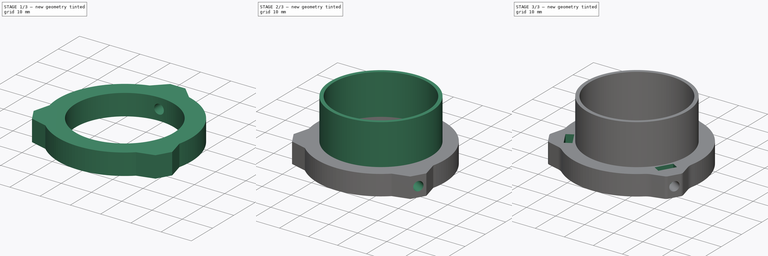
[diagram: build sequence overview — one tinted view per stage of 3, left to right]
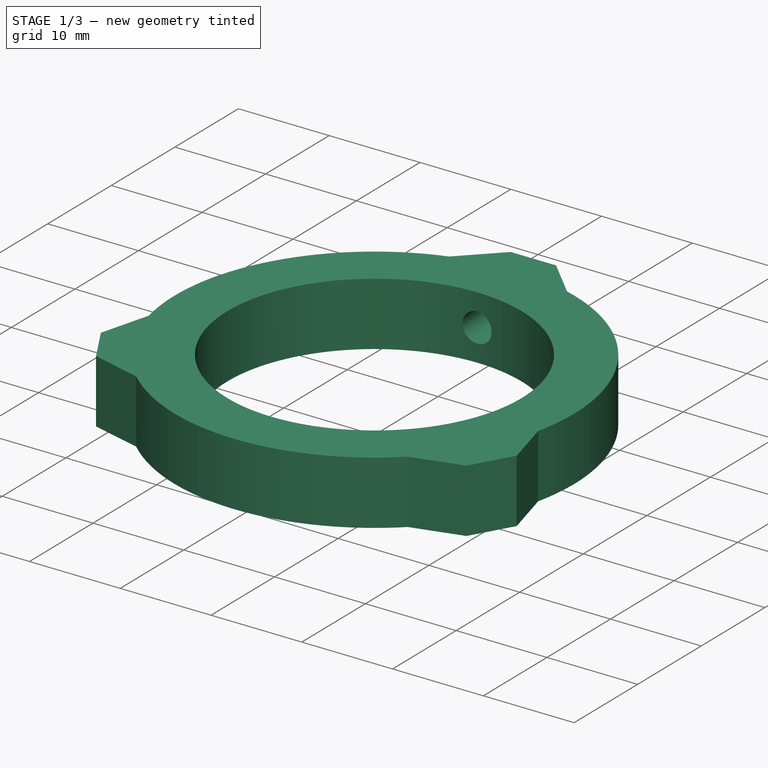
[diagram: stage 1 of 3 — iso view after this stage's code; geometry added in this stage tinted green]
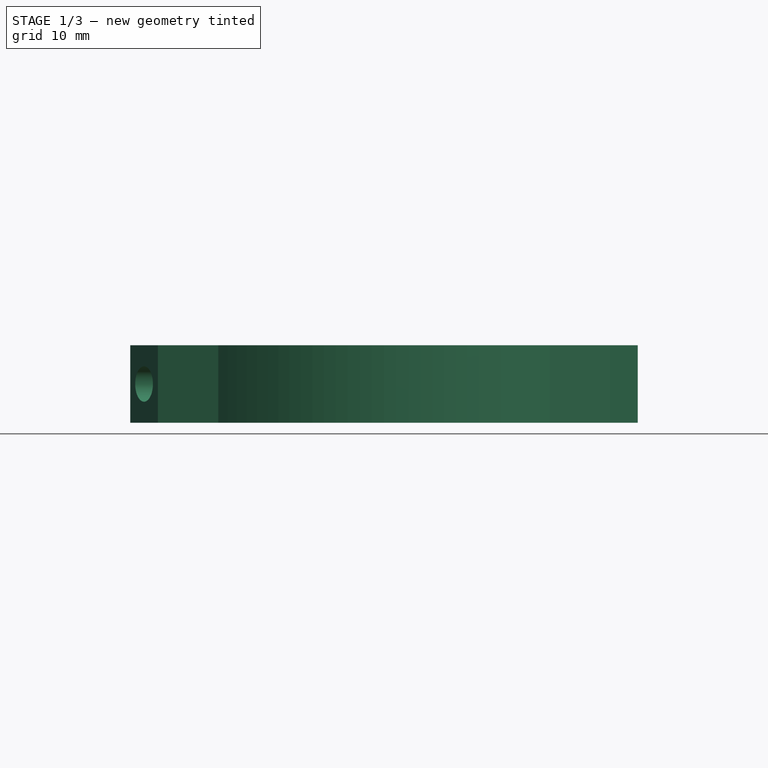
[diagram: stage 1 of 3 — front view after this stage's code; geometry added in this stage tinted green]
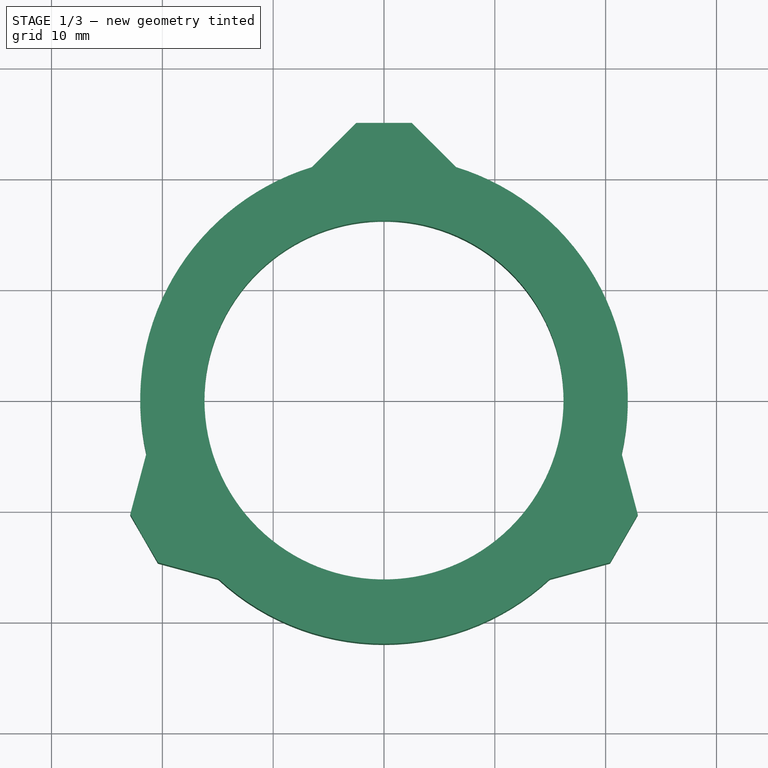
[diagram: stage 1 of 3 — top view after this stage's code; geometry added in this stage tinted green]
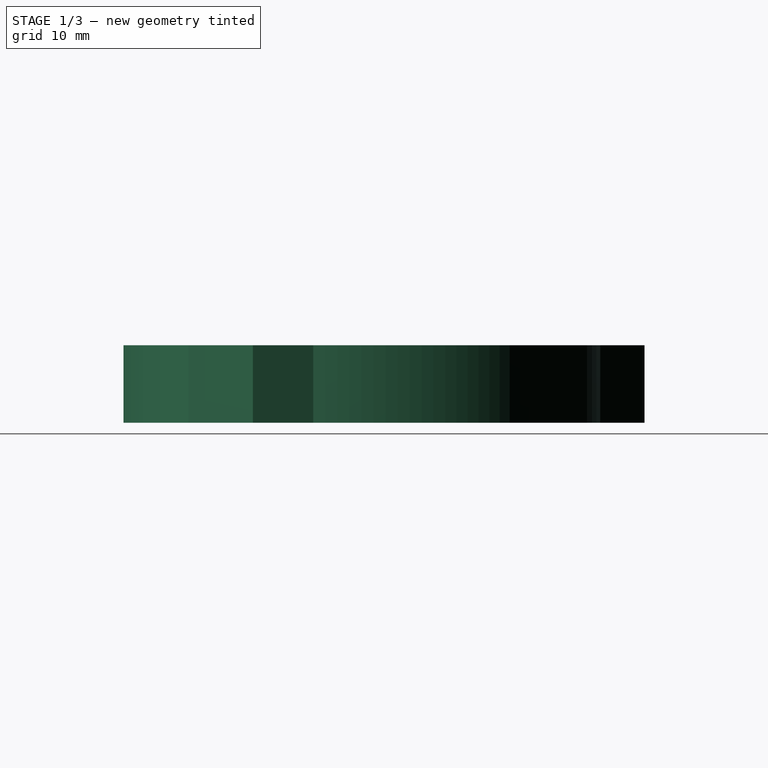
[diagram: stage 1 of 3 — right view after this stage's code; geometry added in this stage tinted green]
FCSTD DOCUMENT  (FreeCAD 0.16R4928 (Git))
Label: axis_spacer_collar
License: CC-BY 3.0
LicenseURL: http://creativecommons.org/licenses/by/3.0/
objects: Sketcher::SketchObject×6, PartDesign::Pocket×4, PartDesign::Pad×2, PartDesign::Fillet×2
note: 20 computed .brp shape members not serialized (recipe doc carries the construction recipe); baked Part::Feature solids carry a one-line shape summary decoded from their .brp

FEATURE [Sketcher::SketchObject] Sketch  label="baseSketch"
  sketch-geometry (15):
    g0: Circle CenterX=0 CenterY=0 CenterZ=0 NormalX=0 NormalY=0 NormalZ=1 Radius=16.2
    g1: ArcOfCircle CenterX=0 CenterY=0 CenterZ=0 NormalX=0 NormalY=0 NormalZ=1 Radius=22 StartAngle=1.87073 EndAngle=3.36526
    g2: LineSegment StartX=-2.5 StartY=25 StartZ=0 EndX=2.5 EndY=25 EndZ=0
    g3: LineSegment StartX=2.5 StartY=25 StartZ=0 EndX=6.5 EndY=21.0178 EndZ=0
    g4: LineSegment StartX=-6.5 StartY=21.0178 StartZ=0 EndX=-2.5 EndY=25 EndZ=0
    g5: LineSegment [constr] StartX=0 StartY=0 StartZ=0 EndX=21.6506 EndY=-12.5 EndZ=0
    g6: LineSegment [constr] StartX=0 StartY=0 StartZ=0 EndX=-21.6506 EndY=-12.5 EndZ=0
    g7: LineSegment StartX=-22.9006 StartY=-10.3349 StartZ=0 EndX=-20.4006 EndY=-14.6651 EndZ=0
    g8: LineSegment StartX=-20.4006 StartY=-14.6651 StartZ=0 EndX=-14.952 EndY=-16.1381 EndZ=0
    g9: LineSegment StartX=-22.9006 StartY=-10.3349 StartZ=0 EndX=-21.452 EndY=-4.87976 EndZ=0
    g10: ArcOfCircle CenterX=0 CenterY=0 CenterZ=0 NormalX=0 NormalY=0 NormalZ=1 Radius=22 StartAngle=3.96512 EndAngle=5.45966
    g11: LineSegment StartX=22.9006 StartY=-10.3349 StartZ=0 EndX=20.4006 EndY=-14.6651 EndZ=0
    g12: LineSegment StartX=22.9006 StartY=-10.3349 StartZ=0 EndX=21.452 EndY=-4.87976 EndZ=0
    g13: LineSegment StartX=20.4006 StartY=-14.6651 StartZ=0 EndX=14.952 EndY=-16.1381 EndZ=0
    g14: ArcOfCircle CenterX=0 CenterY=0 CenterZ=0 NormalX=0 NormalY=0 NormalZ=1 Radius=22 StartAngle=6.05952 EndAngle=7.55405
  constraints (42):
    c: Coincident(g0,g-1)
    c: Radius(g0) = 16.2
    c: Coincident(g1,g-1)
    c: Radius(g1) = 22
    c: Coincident(g2,g3)
    c: Coincident(g4,g2)
    c: Horizontal(g2)
    c: Symmetric(g2,g2,g-2)
    c: Coincident(g5,g-1)
    c: Coincident(g6,g-1)
    c: Angle(g-2,g6) = 2.0944
    c: Angle(g5,g-2) = 2.0944
    c: DistanceY(g-1,g2) = 25
    c: DistanceX(g1,g14) = 13
    c: DistanceX(g2) = 5
    c: Coincident(g3,g14)
    c: Coincident(g1,g4)
    c: Symmetric(g14,g1,g-2)
    c: Distance(g6) = 25
    c: Distance(g5) = 25
    c: Coincident(g7,g8)
    c: Coincident(g9,g7)
    c: Equal(g1,g10)
    c: Coincident(g1,g10)
    c: Coincident(g10,g8)
    c: Coincident(g1,g9)
    c: Symmetric(g7,g7,g6)
    c: Symmetric(g8,g1,g6)
    c: PointOnObject(g6,g7)
    c: Distance(g7) = 5
    c: Distance(g8,g1) = 13
    c: PointOnObject(g5,g11)
    c: Symmetric(g11,g11,g5)
    c: Coincident(g12,g11)
    c: Coincident(g13,g11)
    c: Equal(g10,g14)
    c: Coincident(g10,g14)
    c: Coincident(g13,g10)
    c: Coincident(g12,g14)
    c: Symmetric(g12,g10,g5)
    c: Distance(g12,g10) = 13
    c: Distance(g11) = 5
FEATURE [PartDesign::Pad] Pad  label="basePad"
  Length = 7
  Length2 = 10
  Midplane = true
  Sketch = -> Sketch
  Type = 0
FEATURE [Sketcher::SketchObject] Sketch001  label="M3HoleSketch01"
  Placement = pos=(0,25,0) rot=(0,0.707107,0.707107;3.14159rad)
  Support = -> Pad [Face12]
  sketch-geometry (1):
    g0: Circle CenterX=0 CenterY=0 CenterZ=0 NormalX=0 NormalY=0 NormalZ=1 Radius=1.6
  constraints (2):
    c: Coincident(g0,g-1)
    c: Radius(g0) = 1.6
FEATURE [PartDesign::Pocket] Pocket  label="M3Hole01"
  Length = 5
  Sketch = -> Sketch001
  Type = 2
FEATURE [Sketcher::SketchObject] Sketch002  label="M3HoleSketch002"
  Placement = pos=(-21.6506,-12.5,0) rot=(0.774597,-0.447214,-0.447214;1.82348rad)
  Support = -> Pocket [Face9]
  sketch-geometry (1):
    g0: Circle CenterX=0 CenterY=0 CenterZ=0 NormalX=0 NormalY=0 NormalZ=1 Radius=1.6
  constraints (2):
    c: Coincident(g0,g-1)
    c: Radius(g0) = 1.6
FEATURE [PartDesign::Pocket] Pocket001  label="M3Hole02"
  Length = 5
  Sketch = -> Sketch002
  Type = 2
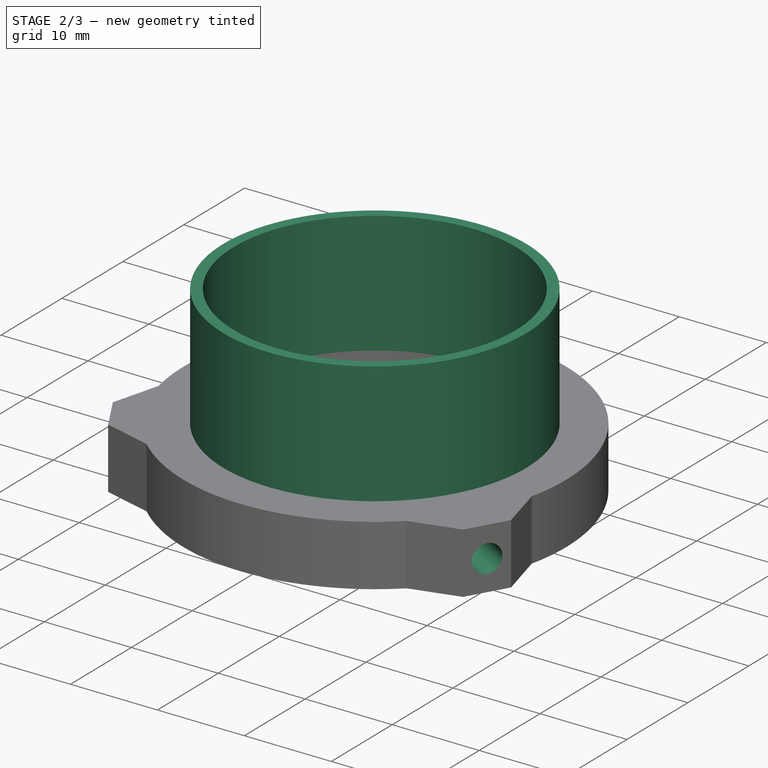
[diagram: stage 2 of 3 — iso view after this stage's code; geometry added in this stage tinted green]
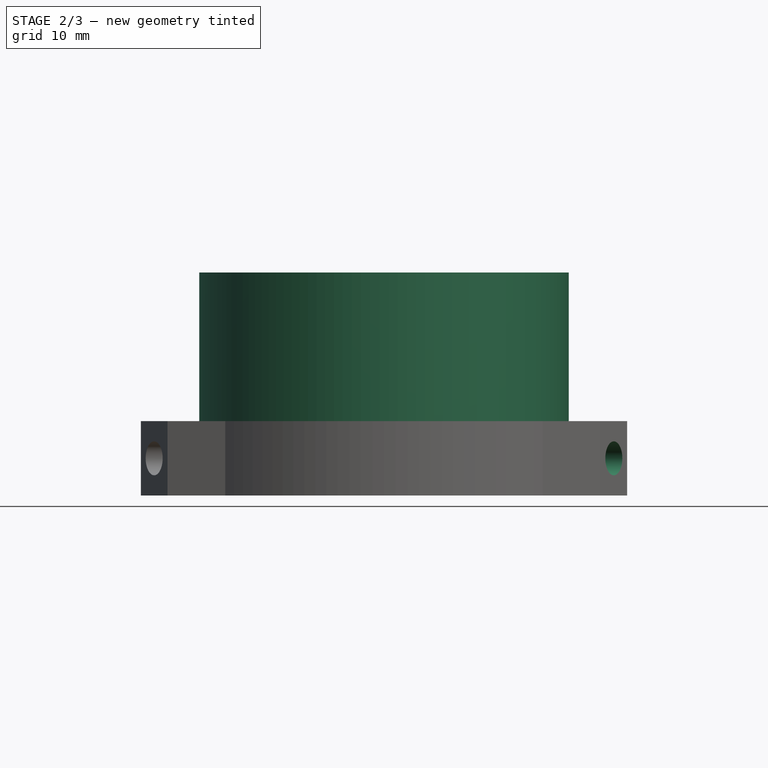
[diagram: stage 2 of 3 — front view after this stage's code; geometry added in this stage tinted green]
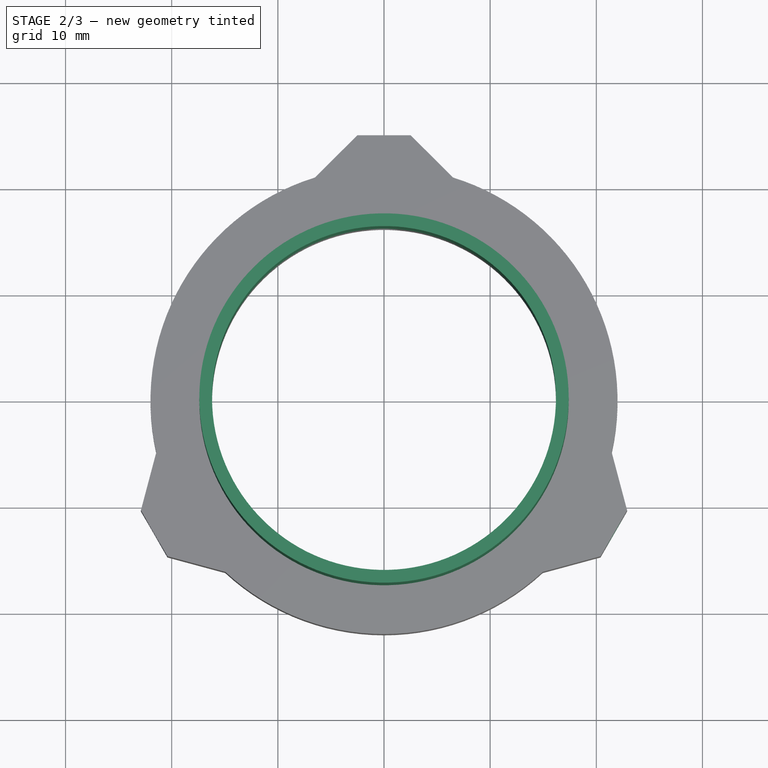
[diagram: stage 2 of 3 — top view after this stage's code; geometry added in this stage tinted green]
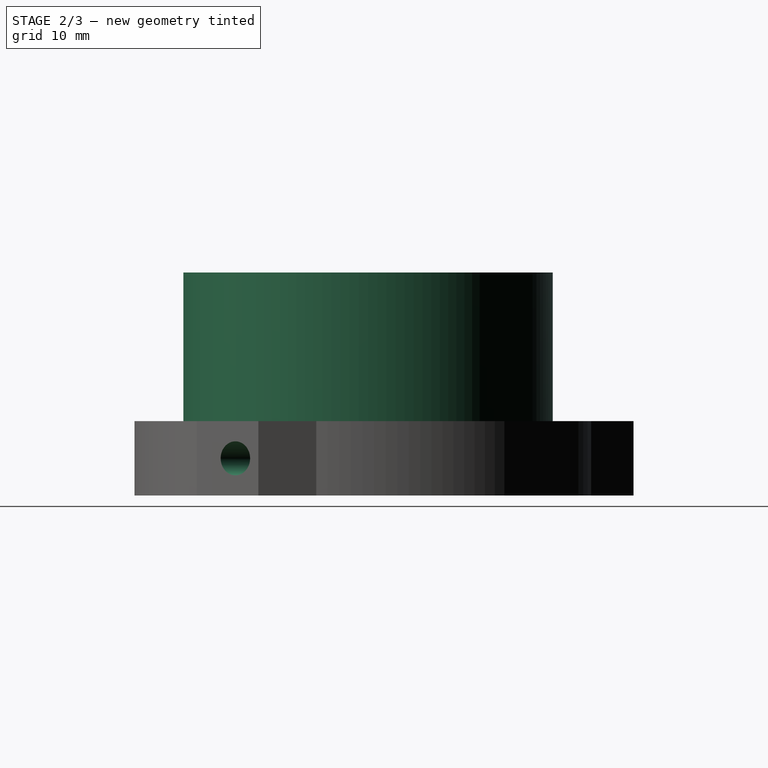
[diagram: stage 2 of 3 — right view after this stage's code; geometry added in this stage tinted green]
FEATURE [Sketcher::SketchObject] Sketch003  label="M3HoleSketch003"
  Placement = pos=(21.6506,-12.5,0) rot=(0.774597,0.447214,0.447214;1.82348rad)
  Support = -> Pocket001 [Face13]
  sketch-geometry (1):
    g0: Circle CenterX=0 CenterY=0 CenterZ=0 NormalX=0 NormalY=0 NormalZ=1 Radius=1.6
  constraints (2):
    c: Coincident(g0,g-1)
    c: Radius(g0) = 1.6
FEATURE [PartDesign::Pocket] Pocket002  label="M3Hole03"
  Length = 5
  Sketch = -> Sketch003
  Type = 2
FEATURE [Sketcher::SketchObject] Sketch004  label="spacerSketch"
  ExternalGeometry = -> [Pocket002]
  Placement = pos=(0,0,3.5) rot=(0,0,1;0rad)
  Support = -> Pocket002 [Face5]
  sketch-geometry (2):
    g0: Circle CenterX=0 CenterY=0 CenterZ=0 NormalX=0 NormalY=0 NormalZ=1 Radius=17.4
    g1: Circle CenterX=0 CenterY=0 CenterZ=0 NormalX=0 NormalY=0 NormalZ=1 Radius=16.2
  constraints (4):
    c: Coincident(g0,g-1)
    c: Radius(g0) = 17.4
    c: Coincident(g1,g-1)
    c: Equal(g-3,g1)
FEATURE [PartDesign::Pad] Pad001  label="spacer"
  Length = 14
  Length2 = 10
  Sketch = -> Sketch004
  Type = 0
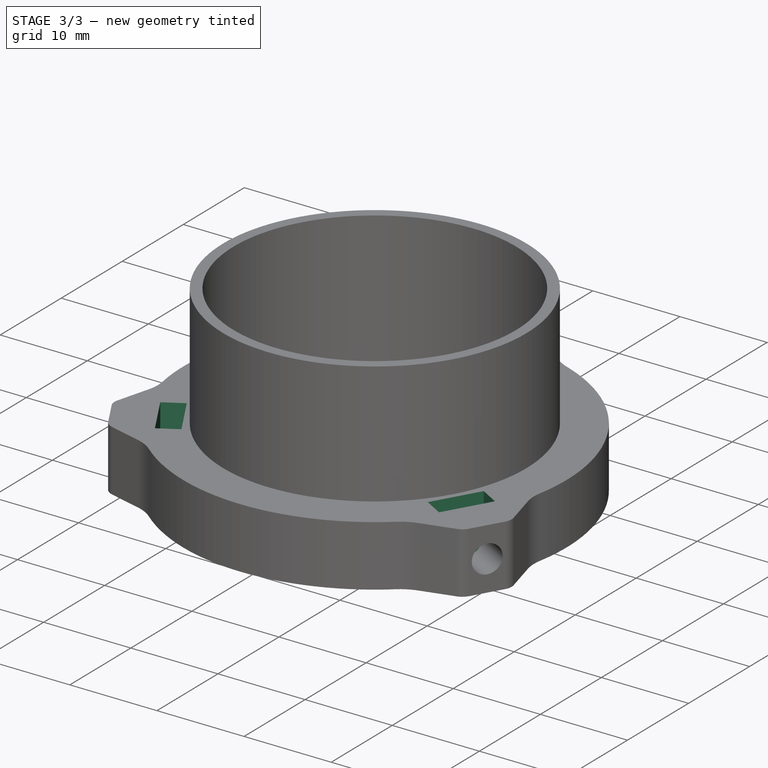
[diagram: stage 3 of 3 — iso view after this stage's code; geometry added in this stage tinted green]
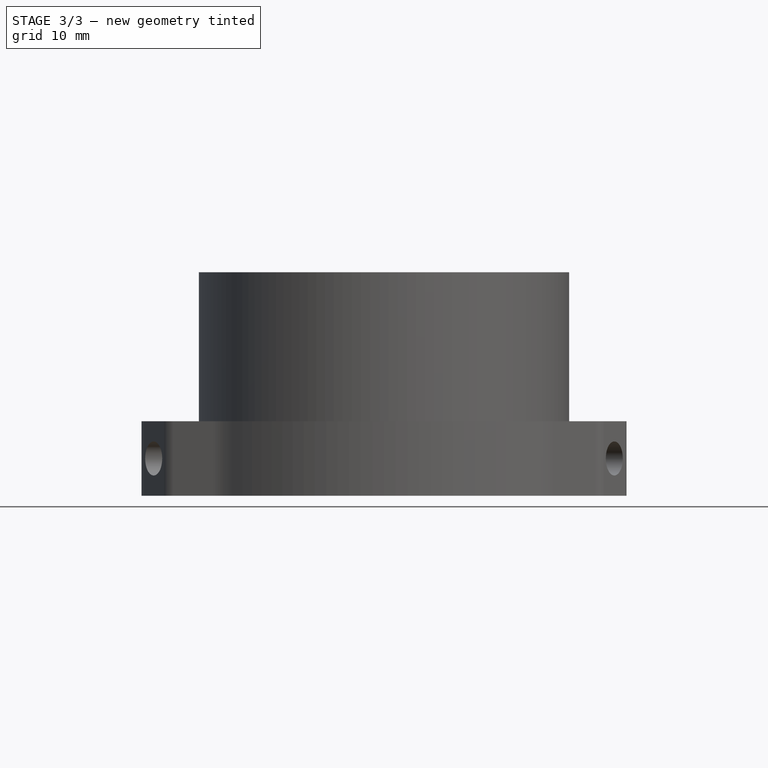
[diagram: stage 3 of 3 — front view after this stage's code; geometry added in this stage tinted green]
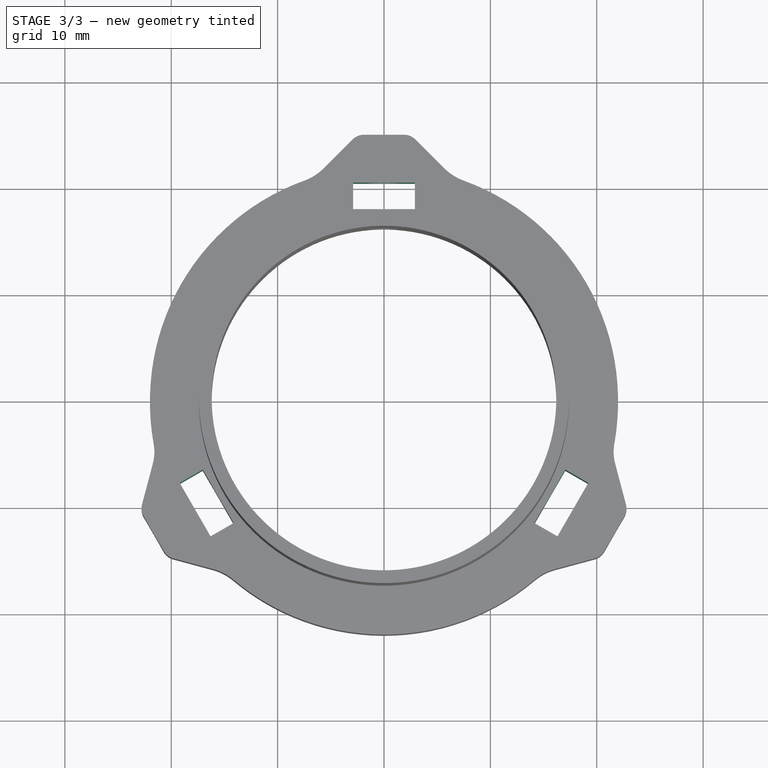
[diagram: stage 3 of 3 — top view after this stage's code; geometry added in this stage tinted green]
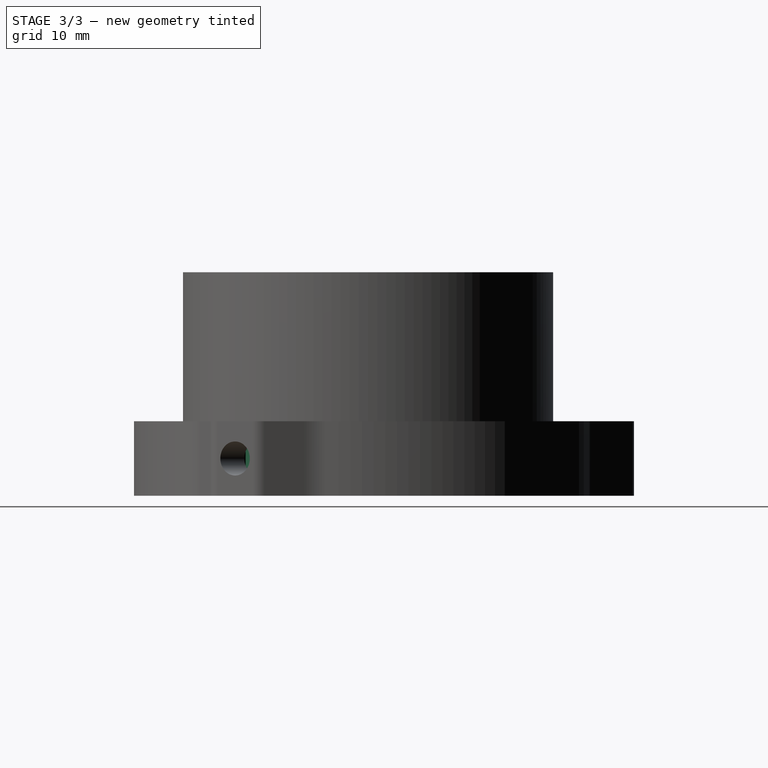
[diagram: stage 3 of 3 — right view after this stage's code; geometry added in this stage tinted green]
FEATURE [Sketcher::SketchObject] Sketch005  label="M3NutPocketSketch"
  Placement = pos=(0,0,3.5) rot=(0,0,1;0rad)
  Support = -> Pad001 [Face4]
  sketch-geometry (14):
    g0: LineSegment StartX=-2.9 StartY=20.5 StartZ=0 EndX=2.9 EndY=20.5 EndZ=0
    g1: LineSegment StartX=2.9 StartY=20.5 StartZ=0 EndX=2.9 EndY=18 EndZ=0
    g2: LineSegment StartX=2.9 StartY=18 StartZ=0 EndX=-2.9 EndY=18 EndZ=0
    g3: LineSegment StartX=-2.9 StartY=18 StartZ=0 EndX=-2.9 EndY=20.5 EndZ=0
    g4: LineSegment StartX=-19.2035 StartY=-7.73853 StartZ=0 EndX=-16.3035 EndY=-12.7615 EndZ=0
    g5: LineSegment StartX=-16.3035 StartY=-12.7615 StartZ=0 EndX=-14.1385 EndY=-11.5115 EndZ=0
    g6: LineSegment StartX=-14.1385 StartY=-11.5115 StartZ=0 EndX=-17.0385 EndY=-6.48853 EndZ=0
    g7: LineSegment StartX=-17.0385 StartY=-6.48853 StartZ=0 EndX=-19.2035 EndY=-7.73853 EndZ=0
    g8: LineSegment [constr] StartX=0 StartY=0 StartZ=0 EndX=-15.5885 EndY=-9 EndZ=0
    g9: LineSegment [constr] StartX=0 StartY=0 StartZ=0 EndX=15.5885 EndY=-9 EndZ=0
    g10: LineSegment StartX=17.0385 StartY=-6.48853 StartZ=0 EndX=19.2035 EndY=-7.73853 EndZ=0
    g11: LineSegment StartX=19.2035 StartY=-7.73853 StartZ=0 EndX=16.3035 EndY=-12.7615 EndZ=0
    g12: LineSegment StartX=16.3035 StartY=-12.7615 StartZ=0 EndX=14.1385 EndY=-11.5115 EndZ=0
    g13: LineSegment StartX=14.1385 StartY=-11.5115 StartZ=0 EndX=17.0385 EndY=-6.48853 EndZ=0
  constraints (38):
    c: Coincident(g0,g1)
    c: Coincident(g1,g2)
    c: Coincident(g2,g3)
    c: Coincident(g3,g0)
    c: Horizontal(g0)
    c: Horizontal(g2)
    c: Vertical(g1)
    c: Vertical(g3)
    c: Symmetric(g1,g2,g-2)
    c: DistanceY(g-1,g2) = 18
    c: Coincident(g4,g5)
    c: Coincident(g5,g6)
    c: Coincident(g6,g7)
    c: Coincident(g4,g7)
    c: Coincident(g8,g-1)
    c: Coincident(g9,g-1)
    c: Angle(g9,g-2) = 2.0944
    c: Angle(g-2,g8) = 2.0944
    c: Symmetric(g6,g5,g8)
    c: Symmetric(g4,g4,g8)
    c: PointOnObject(g8,g6)
    c: Distance(g8) = 18
    c: Parallel(g5,g7)
    c: Coincident(g10,g11)
    c: Coincident(g11,g12)
    c: Coincident(g12,g13)
    c: Coincident(g13,g10)
    c: Symmetric(g10,g12,g9)
    c: Symmetric(g10,g11,g9)
    c: Parallel(g10,g12)
    c: PointOnObject(g9,g13)
    c: Distance(g10) = 2.5
    c: Distance(g11) = 5.8
    c: Equal(g10,g1)
    c: Equal(g1,g7)
    c: Equal(g11,g4)
    c: Equal(g4,g0)
    c: Equal(g8,g9)
FEATURE [PartDesign::Pocket] Pocket003  label="M3NutPocket"
  Length = 5
  Sketch = -> Sketch005
  Type = 1
FEATURE [PartDesign::Fillet] Fillet
  Base = -> Pocket003 [Edge37,Edge42,Edge44,Edge49,Edge60,Edge55]
  Radius = 1.5
FEATURE [PartDesign::Fillet] Fillet001
  Base = -> Fillet [Edge53,Edge49,Edge34,Edge38,Edge60,Edge64]
  Radius = 5
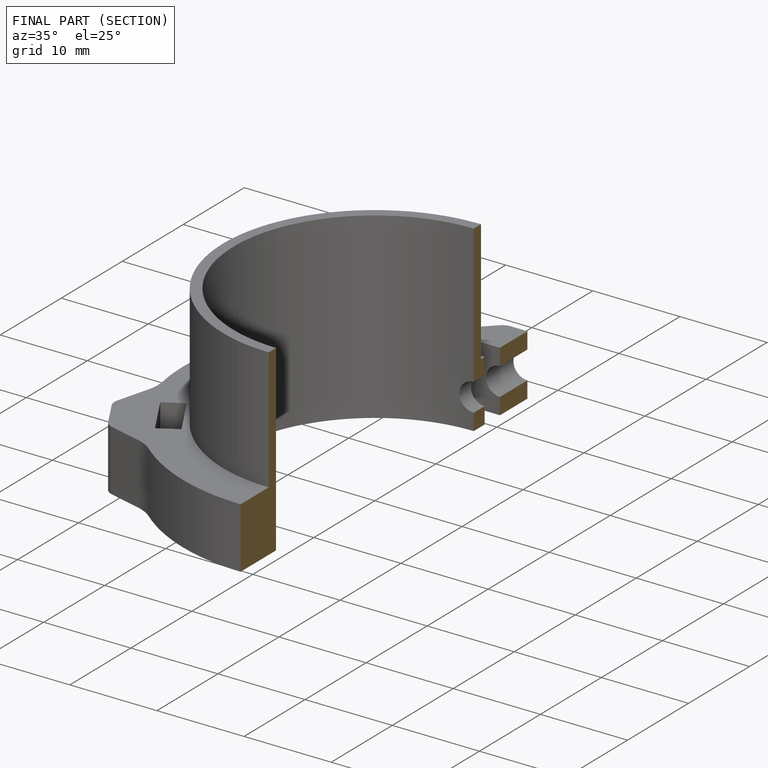
[diagram: finished part — half-section view (interior)]
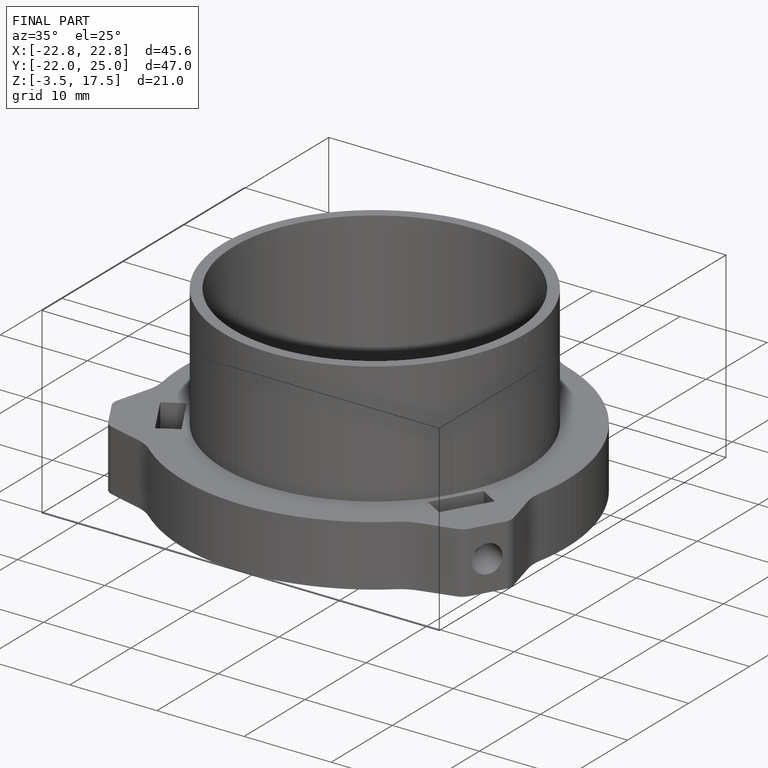
[diagram: finished part — iso view with bounding-box wireframe]
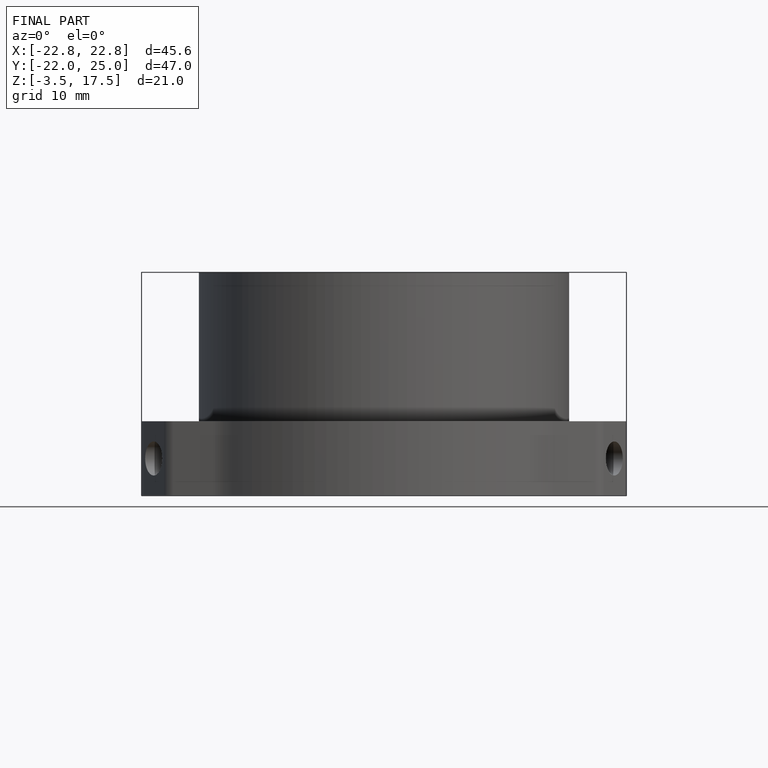
[diagram: finished part — front view with bounding-box wireframe]
